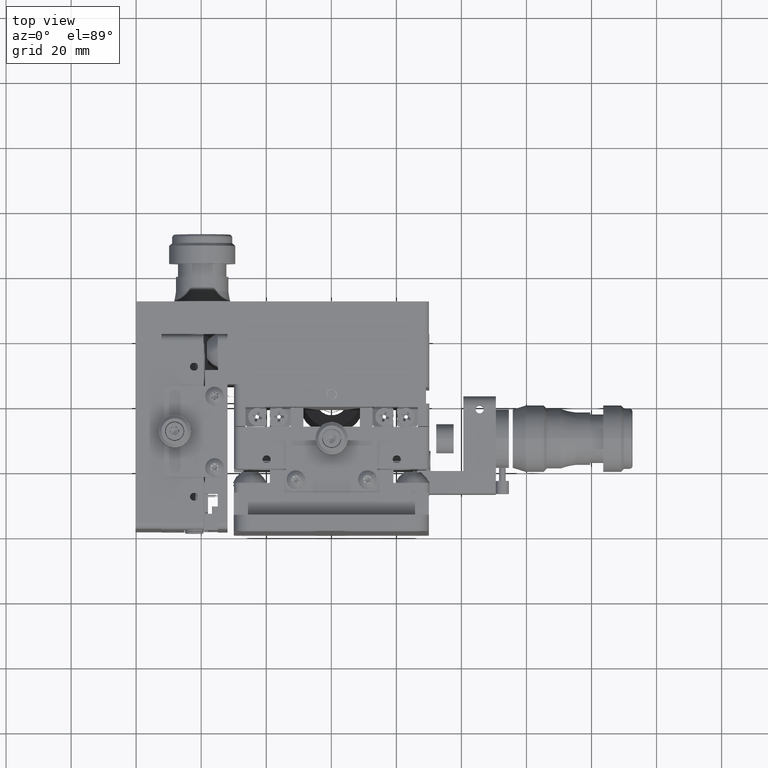
[diagram: clean part render]
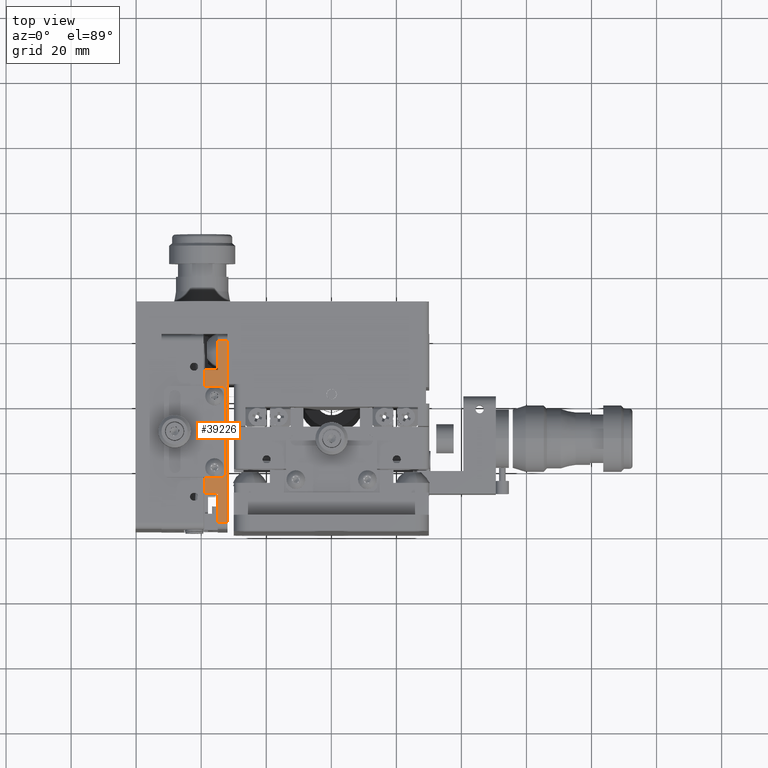
[diagram: same view with one face highlighted and labeled with its STEP entity id]
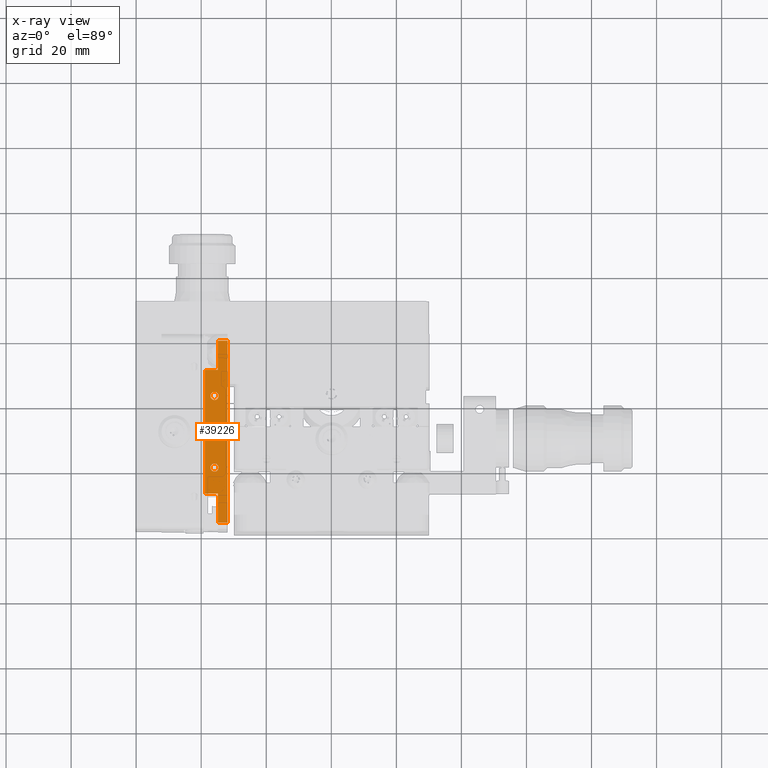
[diagram: x-ray of the same camera — body ghosted, the highlighted face saturated]
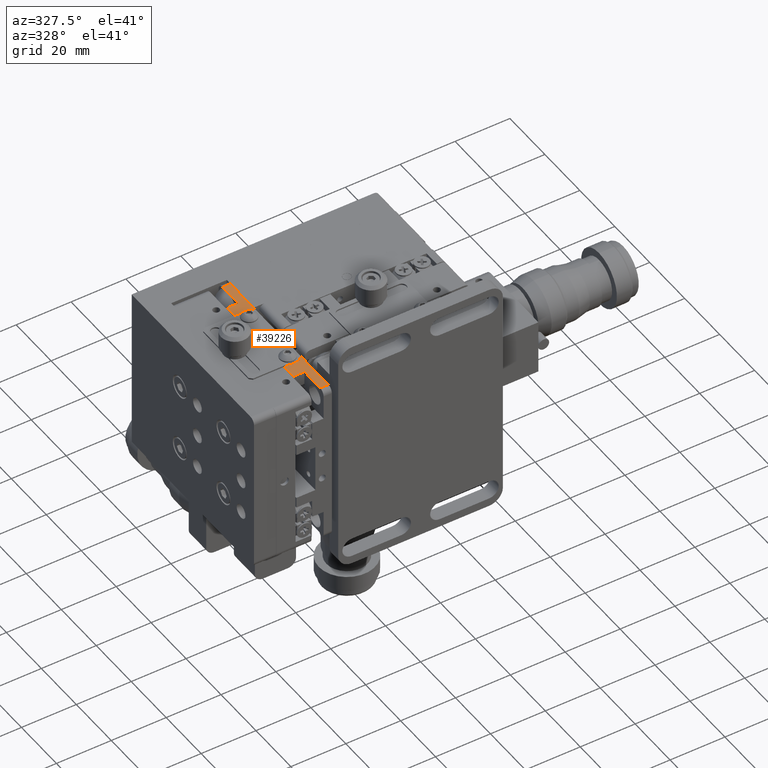
[diagram: same view with one face highlighted and labeled with its STEP entity id]
A machine part, top view. The second image highlights one B-rep face of the part: STEP entity #39226.
The next image is the same camera in x-ray: the body ghosted, the highlighted face saturated — about 0% of this face is hidden behind the body in this view.
A second angle (auxiliary view) of the same face is appended — the face is thin or edge-on in the first view.
In plain terms, the highlighted planar face has unit normal (-0, -0, -1).
Its self-contained STEP definition (entity closure, byte-faithful):
#870 = ORIENTED_EDGE ( 'NONE', *, *, #6410, .F. ) ;
#1633 = EDGE_CURVE ( 'NONE', #39874, #48364, #42079, .T. ) ;
#3018 = EDGE_CURVE ( 'NONE', #52310, #54390, #20754, .T. ) ;
#6269 = ORIENTED_EDGE ( 'NONE', *, *, #3018, .F. ) ;
#6279 = AXIS2_PLACEMENT_3D ( 'NONE', #33292, #24348, #6415 ) ;
#6410 = EDGE_CURVE ( 'NONE', #48364, #39874, #41577, .T. ) ;
#6415 = DIRECTION ( 'NONE',  ( 0.0000000000000000000, 1.000000000000000000, -1.665334536937733200E-014 ) ) ;
#6652 = VERTEX_POINT ( 'NONE', #21747 ) ;
#7179 = ORIENTED_EDGE ( 'NONE', *, *, #22257, .F. ) ;
#7994 = AXIS2_PLACEMENT_3D ( 'NONE', #24629, #56469, #29357 ) ;
#8307 = VERTEX_POINT ( 'NONE', #49483 ) ;
#8331 = CARTESIAN_POINT ( 'NONE',  ( -31.90000000000055300, 58.70000000000031500, 30.00000000000048300 ) ) ;
#9225 = DIRECTION ( 'NONE',  ( 2.981074715590416700E-016, 1.704192342799615000E-014, 1.000000000000000000 ) ) ;
#9361 = CARTESIAN_POINT ( 'NONE',  ( -31.90000000000054600, 2.700000000000320400, 30.00000000000143500 ) ) ;
#9603 = LINE ( 'NONE', #8331, #41398 ) ;
#9817 = DIRECTION ( 'NONE',  ( 0.0000000000000000000, 1.000000000000000000, -1.665334536937738000E-014 ) ) ;
#10226 = LINE ( 'NONE', #48137, #27865 ) ;
#11426 = VERTEX_POINT ( 'NONE', #26946 ) ;
#11455 = FACE_BOUND ( 'NONE', #44951, .T. ) ;
#12869 = EDGE_LOOP ( 'NONE', ( #29326, #870 ) ) ;
#13826 = DIRECTION ( 'NONE',  ( -2.981074715590416700E-016, -1.700558207687395400E-014, -1.000000000000000000 ) ) ;
#14406 = DIRECTION ( 'NONE',  ( 1.910738629229278400E-016, -1.000000000000000000, 1.700558207687395400E-014 ) ) ;
#15706 = VECTOR ( 'NONE', #14406, 1000.000000000000000 ) ;
#15952 = ORIENTED_EDGE ( 'NONE', *, *, #57841, .T. ) ;
#16282 = DIRECTION ( 'NONE',  ( -1.910738629229278400E-016, 1.000000000000000000, -1.700558207687395400E-014 ) ) ;
#16636 = LINE ( 'NONE', #49201, #30103 ) ;
#19007 = EDGE_CURVE ( 'NONE', #6652, #57543, #10226, .T. ) ;
#20317 = VERTEX_POINT ( 'NONE', #30038 ) ;
#20754 = CIRCLE ( 'NONE', #7994, 1.249999999999997600 ) ;
#20940 = CARTESIAN_POINT ( 'NONE',  ( -35.90000000000056000, 40.45000000000031500, 30.00000000000079200 ) ) ;
#21729 = DIRECTION ( 'NONE',  ( 1.910738629229278400E-016, -1.000000000000000000, 1.700558207687395400E-014 ) ) ;
#21747 = CARTESIAN_POINT ( 'NONE',  ( -34.90000000000054600, 2.700000000000320400, 30.00000000000143500 ) ) ;
#22257 = EDGE_CURVE ( 'NONE', #54863, #11426, #51043, .T. ) ;
#22435 = CARTESIAN_POINT ( 'NONE',  ( -34.90000000000054600, 11.70000000000031700, 30.00000000000128300 ) ) ;
#22440 = EDGE_LOOP ( 'NONE', ( #39254, #34376, #7179, #15952, #27636, #58153, #29462, #37444 ) ) ;
#24348 = DIRECTION ( 'NONE',  ( 2.981074715590416700E-016, 1.704192342799615000E-014, 1.000000000000000000 ) ) ;
#24371 = DIRECTION ( 'NONE',  ( 1.000000000000000000, 2.133529073607689800E-016, 3.089386163770767200E-017 ) ) ;
#24629 = CARTESIAN_POINT ( 'NONE',  ( -35.90000000000055300, 19.70000000000031900, 30.00000000000114800 ) ) ;
#25844 = DIRECTION ( 'NONE',  ( -1.910738629229278400E-016, 1.000000000000000000, -1.700558207687395400E-014 ) ) ;
#26946 = CARTESIAN_POINT ( 'NONE',  ( -34.90000000000055300, 58.70000000000031500, 30.00000000000048300 ) ) ;
#27256 = CARTESIAN_POINT ( 'NONE',  ( -31.90000000000056000, 60.70000000000031500, 30.00000000000045100 ) ) ;
#27346 = EDGE_CURVE ( 'NONE', #36889, #11426, #9603, .T. ) ;
#27636 = ORIENTED_EDGE ( 'NONE', *, *, #30049, .T. ) ;
#27795 = CARTESIAN_POINT ( 'NONE',  ( -31.90000000000055300, 58.70000000000031500, 30.00000000000048300 ) ) ;
#27865 = VECTOR ( 'NONE', #16282, 1000.000000000000000 ) ;
#28555 = EDGE_CURVE ( 'NONE', #6652, #29014, #46567, .T. ) ;
#29014 = VERTEX_POINT ( 'NONE', #9361 ) ;
#29288 = CARTESIAN_POINT ( 'NONE',  ( -31.90000000000054600, 11.70000000000031400, 30.00000000000128300 ) ) ;
#29326 = ORIENTED_EDGE ( 'NONE', *, *, #1633, .F. ) ;
#29357 = DIRECTION ( 'NONE',  ( 0.0000000000000000000, 1.000000000000000000, -1.665334536937738000E-014 ) ) ;
#29462 = ORIENTED_EDGE ( 'NONE', *, *, #19007, .F. ) ;
#30038 = CARTESIAN_POINT ( 'NONE',  ( -38.90000000000055300, 49.70000000000033000, 30.00000000000063600 ) ) ;
#30049 = EDGE_CURVE ( 'NONE', #20317, #8307, #16636, .T. ) ;
#30103 = VECTOR ( 'NONE', #21729, 1000.000000000000000 ) ;
#31200 = LINE ( 'NONE', #32230, #15706 ) ;
#31565 = ORIENTED_EDGE ( 'NONE', *, *, #34280, .F. ) ;
#31786 = AXIS2_PLACEMENT_3D ( 'NONE', #31922, #9225, #9817 ) ;
#31922 = CARTESIAN_POINT ( 'NONE',  ( -35.90000000000055300, 19.70000000000031900, 30.00000000000114800 ) ) ;
#32230 = CARTESIAN_POINT ( 'NONE',  ( -31.90000000000056000, 60.70000000000031500, 30.00000000000045100 ) ) ;
#32437 = VECTOR ( 'NONE', #36491, 1000.000000000000000 ) ;
#33292 = CARTESIAN_POINT ( 'NONE',  ( -35.90000000000056000, 41.70000000000032300, 30.00000000000077100 ) ) ;
#34280 = EDGE_CURVE ( 'NONE', #54390, #52310, #43849, .T. ) ;
#34376 = ORIENTED_EDGE ( 'NONE', *, *, #27346, .T. ) ;
#35586 = AXIS2_PLACEMENT_3D ( 'NONE', #56387, #43345, #48473 ) ;
#36491 = DIRECTION ( 'NONE',  ( 1.000000000000000000, 2.133529073607689800E-016, 3.089386163770767200E-017 ) ) ;
#36889 = VERTEX_POINT ( 'NONE', #27795 ) ;
#36925 = FACE_BOUND ( 'NONE', #12869, .T. ) ;
#37444 = ORIENTED_EDGE ( 'NONE', *, *, #28555, .T. ) ;
#38527 = LINE ( 'NONE', #29288, #47049 ) ;
#39087 = VECTOR ( 'NONE', #25844, 1000.000000000000000 ) ;
#39226 = ADVANCED_FACE ( 'NONE', ( #11455, #36925, #39740 ), #45273, .F. ) ;
#39254 = ORIENTED_EDGE ( 'NONE', *, *, #51600, .F. ) ;
#39320 = CARTESIAN_POINT ( 'NONE',  ( -34.90000000000055300, 60.70000000000031500, 30.00000000000045100 ) ) ;
#39420 = VECTOR ( 'NONE', #43184, 1000.000000000000000 ) ;
#39740 = FACE_OUTER_BOUND ( 'NONE', #22440, .T. ) ;
#39874 = VERTEX_POINT ( 'NONE', #43525 ) ;
#40938 = DIRECTION ( 'NONE',  ( 1.910738629229278400E-016, -1.000000000000000000, 1.700558207687395400E-014 ) ) ;
#41398 = VECTOR ( 'NONE', #44281, 1000.000000000000000 ) ;
#41577 = CIRCLE ( 'NONE', #6279, 1.250000000000001100 ) ;
#42079 = CIRCLE ( 'NONE', #35586, 1.250000000000001100 ) ;
#42605 = CARTESIAN_POINT ( 'NONE',  ( -35.90000000000055300, 18.45000000000031900, 30.00000000000116900 ) ) ;
#43184 = DIRECTION ( 'NONE',  ( -1.000000000000000000, -2.133529073607689800E-016, -3.089386163770767200E-017 ) ) ;
#43345 = DIRECTION ( 'NONE',  ( 2.981074715590416700E-016, 1.704192342799615000E-014, 1.000000000000000000 ) ) ;
#43525 = CARTESIAN_POINT ( 'NONE',  ( -35.90000000000056000, 42.95000000000032300, 30.00000000000075300 ) ) ;
#43849 = CIRCLE ( 'NONE', #31786, 1.249999999999997600 ) ;
#44281 = DIRECTION ( 'NONE',  ( -1.000000000000000000, -2.133529073607689800E-016, -3.089386163770767200E-017 ) ) ;
#44951 = EDGE_LOOP ( 'NONE', ( #31565, #6269 ) ) ;
#45273 = PLANE ( 'NONE',  #49790 ) ;
#46567 = LINE ( 'NONE', #50666, #32437 ) ;
#47049 = VECTOR ( 'NONE', #24371, 1000.000000000000000 ) ;
#47750 = CARTESIAN_POINT ( 'NONE',  ( -31.90000000000055300, 49.70000000000033000, 30.00000000000063600 ) ) ;
#48137 = CARTESIAN_POINT ( 'NONE',  ( -34.90000000000055300, 60.70000000000031500, 30.00000000000045100 ) ) ;
#48364 = VERTEX_POINT ( 'NONE', #20940 ) ;
#48473 = DIRECTION ( 'NONE',  ( 0.0000000000000000000, 1.000000000000000000, -1.665334536937733200E-014 ) ) ;
#49201 = CARTESIAN_POINT ( 'NONE',  ( -38.90000000000056000, 60.70000000000031500, 30.00000000000045100 ) ) ;
#49234 = CARTESIAN_POINT ( 'NONE',  ( -35.90000000000055300, 20.95000000000031500, 30.00000000000112600 ) ) ;
#49330 = EDGE_CURVE ( 'NONE', #8307, #57543, #38527, .T. ) ;
#49483 = CARTESIAN_POINT ( 'NONE',  ( -38.90000000000054600, 11.70000000000031700, 30.00000000000128300 ) ) ;
#49790 = AXIS2_PLACEMENT_3D ( 'NONE', #27256, #13826, #40938 ) ;
#50666 = CARTESIAN_POINT ( 'NONE',  ( -31.90000000000054600, 2.700000000000320400, 30.00000000000143500 ) ) ;
#51043 = LINE ( 'NONE', #39320, #39087 ) ;
#51381 = LINE ( 'NONE', #47750, #39420 ) ;
#51600 = EDGE_CURVE ( 'NONE', #36889, #29014, #31200, .T. ) ;
#52310 = VERTEX_POINT ( 'NONE', #42605 ) ;
#54390 = VERTEX_POINT ( 'NONE', #49234 ) ;
#54685 = CARTESIAN_POINT ( 'NONE',  ( -34.90000000000055300, 49.70000000000033000, 30.00000000000063600 ) ) ;
#54863 = VERTEX_POINT ( 'NONE', #54685 ) ;
#56387 = CARTESIAN_POINT ( 'NONE',  ( -35.90000000000056000, 41.70000000000032300, 30.00000000000077100 ) ) ;
#56469 = DIRECTION ( 'NONE',  ( 2.981074715590416700E-016, 1.704192342799615000E-014, 1.000000000000000000 ) ) ;
#57543 = VERTEX_POINT ( 'NONE', #22435 ) ;
#57841 = EDGE_CURVE ( 'NONE', #54863, #20317, #51381, .T. ) ;
#58153 = ORIENTED_EDGE ( 'NONE', *, *, #49330, .T. ) ;